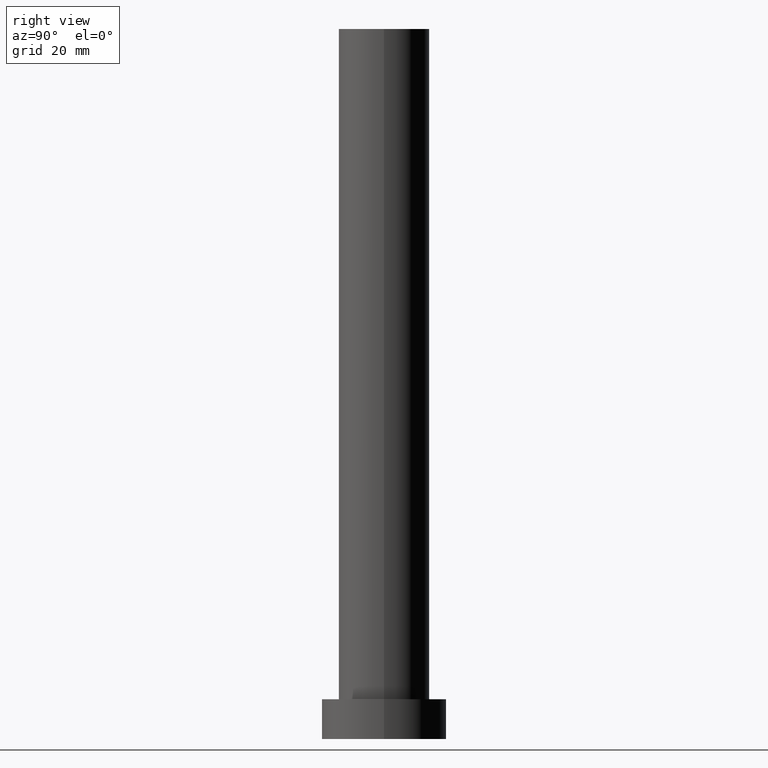
[diagram: clean part render]
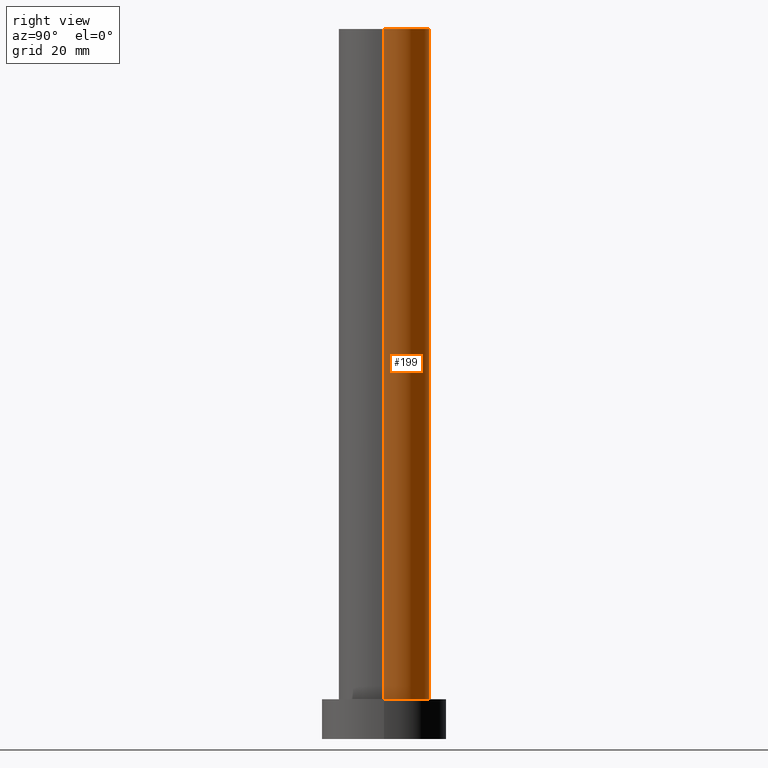
[diagram: same view with one face highlighted and labeled with its STEP entity id]
A machine part, right view. The second image highlights one B-rep face of the part: STEP entity #199.
In plain terms, the highlighted cylindrical surface (partial cylindrical patch) has radius 8 mm, axis along (-0, -0, -1).
Its self-contained STEP definition (entity closure, byte-faithful):
#5 = CARTESIAN_POINT ( 'NONE',  ( 0.000000000000000000, 0.000000000000000000, 125.0000000000000000 ) ) ;
#7 = EDGE_CURVE ( 'NONE', #229, #14, #134, .T. ) ;
#8 = VERTEX_POINT ( 'NONE', #95 ) ;
#14 = VERTEX_POINT ( 'NONE', #80 ) ;
#20 = ORIENTED_EDGE ( 'NONE', *, *, #44, .F. ) ;
#27 = DIRECTION ( 'NONE',  ( 0.000000000000000000, 0.000000000000000000, 1.000000000000000000 ) ) ;
#33 = CARTESIAN_POINT ( 'NONE',  ( -8.000000000000000000, 0.000000000000000000, 125.0000000000000000 ) ) ;
#44 = EDGE_CURVE ( 'NONE', #90, #8, #155, .T. ) ;
#46 = DIRECTION ( 'NONE',  ( -0.000000000000000000, -0.000000000000000000, -1.000000000000000000 ) ) ;
#66 = CARTESIAN_POINT ( 'NONE',  ( 8.000000000000000000, 9.797174393178825657E-16, 125.0000000000000000 ) ) ;
#68 = DIRECTION ( 'NONE',  ( 0.000000000000000000, 0.000000000000000000, 1.000000000000000000 ) ) ;
#72 = ORIENTED_EDGE ( 'NONE', *, *, #7, .T. ) ;
#73 = AXIS2_PLACEMENT_3D ( 'NONE', #79, #27, #156 ) ;
#79 = CARTESIAN_POINT ( 'NONE',  ( 0.000000000000000000, 0.000000000000000000, 7.000000000000000000 ) ) ;
#80 = CARTESIAN_POINT ( 'NONE',  ( 8.000000000000000000, 9.797174393178825657E-16, 7.000000000000000000 ) ) ;
#82 = DIRECTION ( 'NONE',  ( -1.000000000000000000, 0.000000000000000000, 0.000000000000000000 ) ) ;
#83 = FACE_OUTER_BOUND ( 'NONE', #246, .T. ) ;
#84 = ORIENTED_EDGE ( 'NONE', *, *, #108, .T. ) ;
#90 = VERTEX_POINT ( 'NONE', #33 ) ;
#95 = CARTESIAN_POINT ( 'NONE',  ( -8.000000000000000000, 0.000000000000000000, 7.000000000000000000 ) ) ;
#103 = DIRECTION ( 'NONE',  ( 1.000000000000000000, 0.000000000000000000, 0.000000000000000000 ) ) ;
#108 = EDGE_CURVE ( 'NONE', #14, #8, #167, .T. ) ;
#115 = VECTOR ( 'NONE', #215, 1000.000000000000000 ) ;
#125 = AXIS2_PLACEMENT_3D ( 'NONE', #143, #68, #103 ) ;
#127 = CYLINDRICAL_SURFACE ( 'NONE', #251, 8.000000000000000000 ) ;
#134 = LINE ( 'NONE', #236, #115 ) ;
#137 = CIRCLE ( 'NONE', #125, 8.000000000000000000 ) ;
#143 = CARTESIAN_POINT ( 'NONE',  ( 0.000000000000000000, 0.000000000000000000, 125.0000000000000000 ) ) ;
#149 = VECTOR ( 'NONE', #194, 1000.000000000000000 ) ;
#155 = LINE ( 'NONE', #190, #149 ) ;
#156 = DIRECTION ( 'NONE',  ( 1.000000000000000000, 0.000000000000000000, 0.000000000000000000 ) ) ;
#167 = CIRCLE ( 'NONE', #73, 8.000000000000000000 ) ;
#174 = EDGE_CURVE ( 'NONE', #229, #90, #137, .T. ) ;
#190 = CARTESIAN_POINT ( 'NONE',  ( -8.000000000000000000, 0.000000000000000000, 125.0000000000000000 ) ) ;
#194 = DIRECTION ( 'NONE',  ( -0.000000000000000000, -0.000000000000000000, -1.000000000000000000 ) ) ;
#199 = ADVANCED_FACE ( 'NONE', ( #83 ), #127, .T. ) ;
#209 = ORIENTED_EDGE ( 'NONE', *, *, #174, .F. ) ;
#215 = DIRECTION ( 'NONE',  ( -0.000000000000000000, -0.000000000000000000, -1.000000000000000000 ) ) ;
#229 = VERTEX_POINT ( 'NONE', #66 ) ;
#236 = CARTESIAN_POINT ( 'NONE',  ( 8.000000000000000000, 9.797174393178825657E-16, 125.0000000000000000 ) ) ;
#246 = EDGE_LOOP ( 'NONE', ( #209, #72, #84, #20 ) ) ;
#251 = AXIS2_PLACEMENT_3D ( 'NONE', #5, #46, #82 ) ;